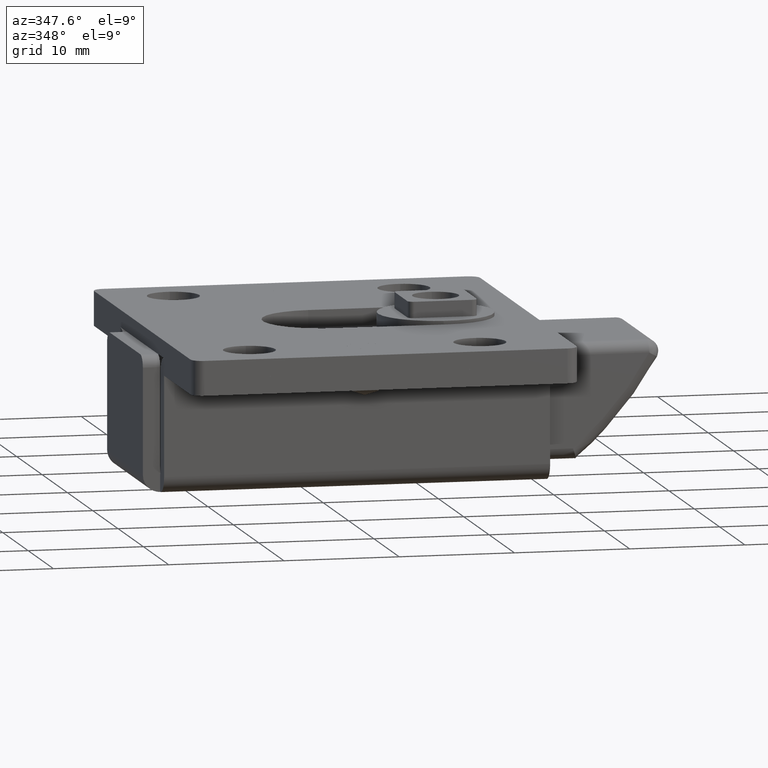
[diagram: clean part render]
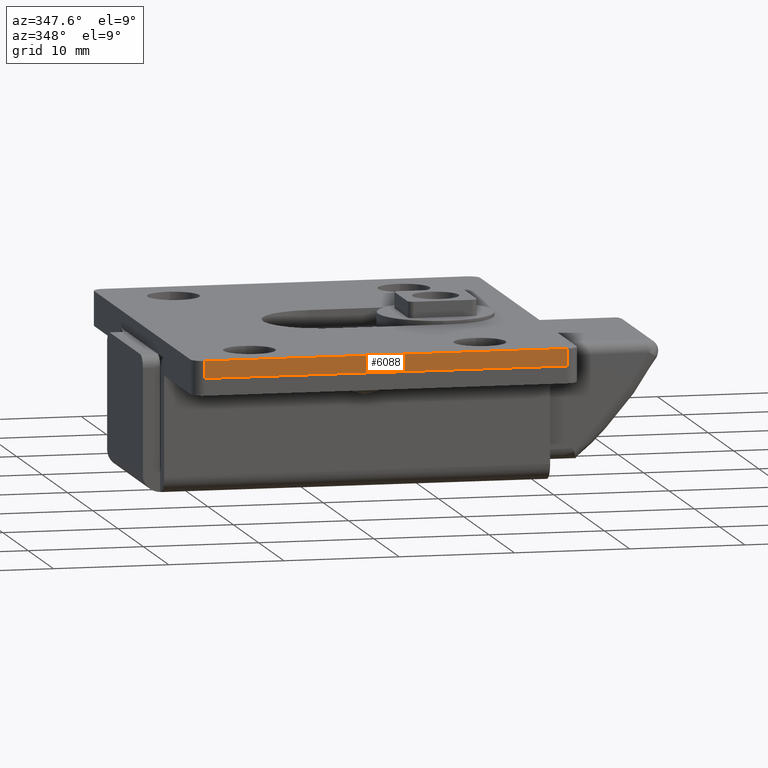
[diagram: same view with one face highlighted and labeled with its STEP entity id]
A machine part, auxiliary view. The second image highlights one B-rep face of the part: STEP entity #6088.
In plain terms, the highlighted face is a freeform B-spline surface patch.
Its self-contained STEP definition (entity closure, byte-faithful):
#5830=CARTESIAN_POINT('',(-0.999999999934403,-20.0,11.699999999616900));
#5831=VERTEX_POINT('',#5830);
#5843=CARTESIAN_POINT('',(-32.500000000008853,-20.0,11.699999999616900));
#5844=VERTEX_POINT('',#5843);
#5845=CARTESIAN_POINT('',(-0.999999999934403,-20.0,11.699999999616900));
#5846=CARTESIAN_POINT('',(-32.500000000008853,-20.0,11.699999999616900));
#5847=QUASI_UNIFORM_CURVE('',1,(#5845,#5846),.UNSPECIFIED.,.F.,.U.);
#5848=EDGE_CURVE('',#5831,#5844,#5847,.T.);
#5922=CARTESIAN_POINT('',(-32.500000000008853,-20.0,13.199999999618299));
#5923=VERTEX_POINT('',#5922);
#5937=CARTESIAN_POINT('',(-0.999999999934403,-20.0,13.199999999618299));
#5938=VERTEX_POINT('',#5937);
#5939=CARTESIAN_POINT('',(-0.999999999934403,-20.0,13.199999999618299));
#5940=CARTESIAN_POINT('',(-32.500000000008853,-20.0,13.199999999618299));
#5941=QUASI_UNIFORM_CURVE('',1,(#5939,#5940),.UNSPECIFIED.,.F.,.U.);
#5942=EDGE_CURVE('',#5938,#5923,#5941,.T.);
#6059=CARTESIAN_POINT('',(-32.500000000008853,-20.0,13.199999999618299));
#6060=CARTESIAN_POINT('',(-32.500000000008853,-20.0,11.699999999616900));
#6061=QUASI_UNIFORM_CURVE('',1,(#6059,#6060),.UNSPECIFIED.,.F.,.U.);
#6062=EDGE_CURVE('',#5923,#5844,#6061,.T.);
#6073=CARTESIAN_POINT('',(-34.073424938959448,-20.0,13.274924996711080));
#6074=CARTESIAN_POINT('',(-34.073424938959448,-20.0,11.625074962290981));
#6075=CARTESIAN_POINT('',(0.573425783912041,-20.0,13.274924996711080));
#6076=CARTESIAN_POINT('',(0.573425783912041,-20.0,11.625074962290981));
#6077=B_SPLINE_SURFACE_WITH_KNOTS('',1,1,((#6073,#6075),(#6074,#6076)),.UNSPECIFIED.,.F.,.F.,.U.,(2,2),(2,2),(0.041708334948495,0.958291687403247),(0.0,34.646850722871491),.UNSPECIFIED.);
#6078=ORIENTED_EDGE('',*,*,#5848,.F.);
#6079=CARTESIAN_POINT('',(-0.999999999934403,-20.0,13.199999999618299));
#6080=CARTESIAN_POINT('',(-0.999999999934403,-20.0,11.699999999616900));
#6081=QUASI_UNIFORM_CURVE('',1,(#6079,#6080),.UNSPECIFIED.,.F.,.U.);
#6082=EDGE_CURVE('',#5938,#5831,#6081,.T.);
#6083=ORIENTED_EDGE('',*,*,#6082,.F.);
#6084=ORIENTED_EDGE('',*,*,#5942,.T.);
#6085=ORIENTED_EDGE('',*,*,#6062,.T.);
#6086=EDGE_LOOP('',(#6078,#6083,#6084,#6085));
#6087=FACE_OUTER_BOUND('',#6086,.T.);
#6088=ADVANCED_FACE('',(#6087),#6077,.T.);